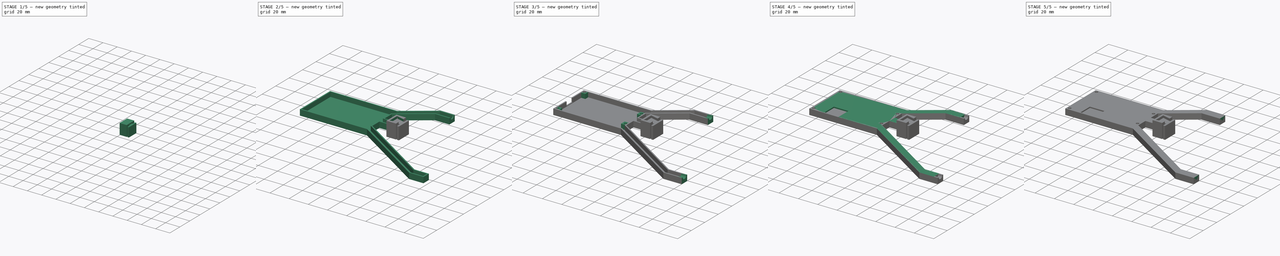
[diagram: build sequence overview — one tinted view per stage of 5, left to right]
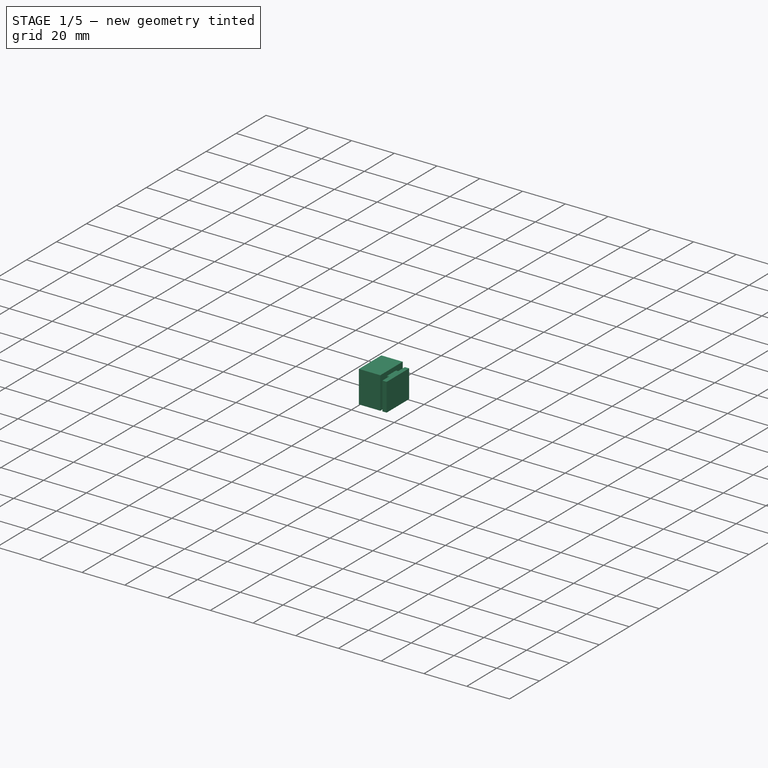
[diagram: stage 1 of 5 — iso view after this stage's code; geometry added in this stage tinted green]
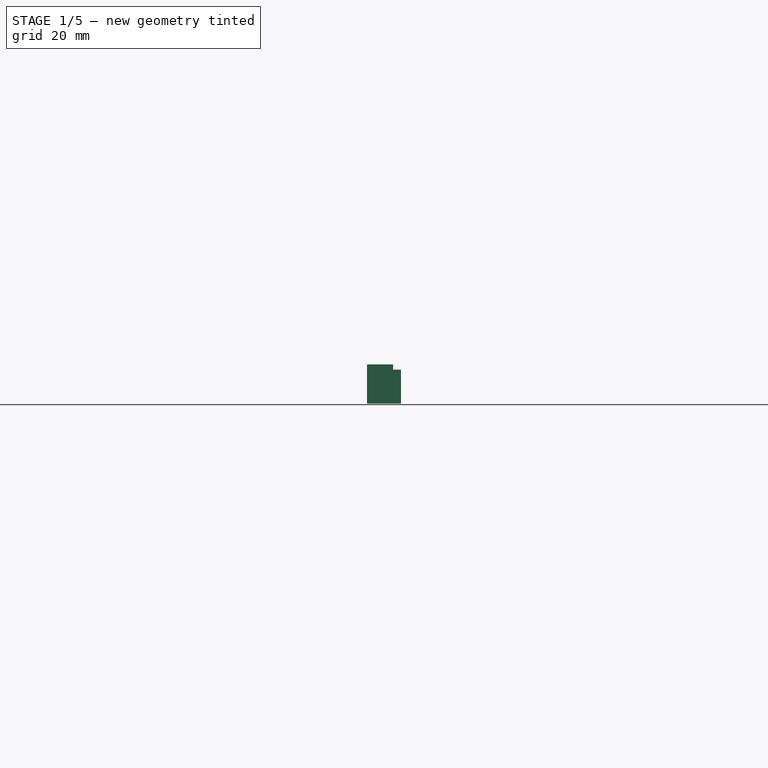
[diagram: stage 1 of 5 — front view after this stage's code; geometry added in this stage tinted green]
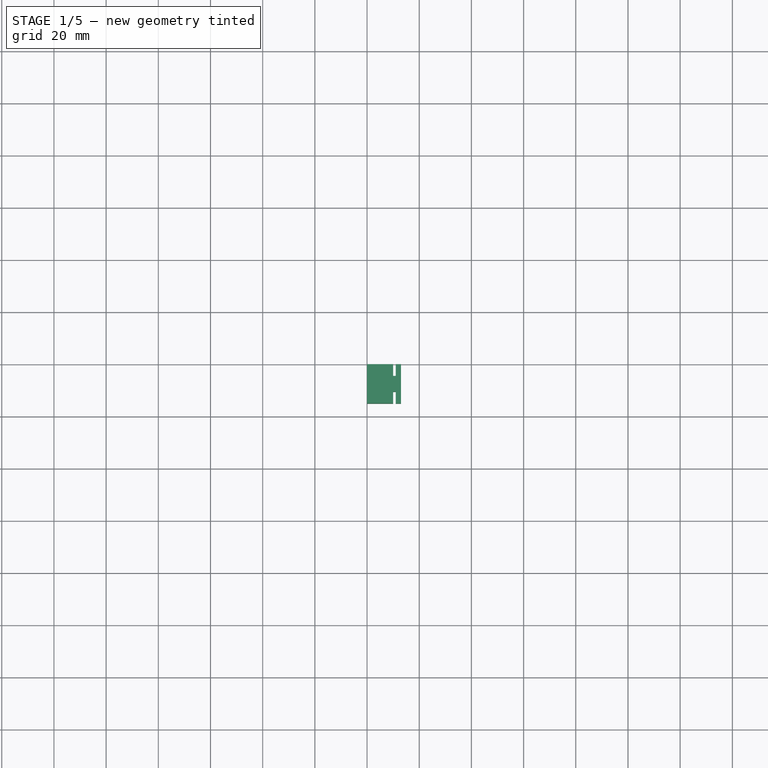
[diagram: stage 1 of 5 — top view after this stage's code; geometry added in this stage tinted green]
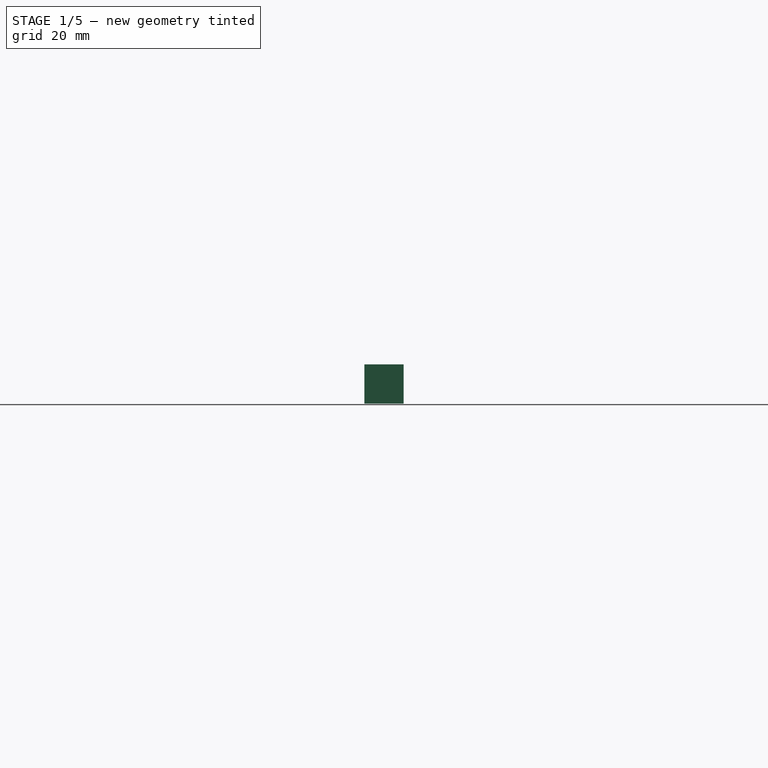
[diagram: stage 1 of 5 — right view after this stage's code; geometry added in this stage tinted green]
FCSTD DOCUMENT  (FreeCAD 0.19R24267 +99 (Git))
Label: Head Tracker
License: All rights reserved
LicenseURL: http://en.wikipedia.org/wiki/All_rights_reserved
objects: Sketcher::SketchObject×18, PartDesign::Pad×13, PartDesign::Pocket×11, PartDesign::Body×4, PartDesign::Thickness×2
note: 74 computed .brp shape members not serialized (recipe doc carries the construction recipe); baked Part::Feature solids carry a one-line shape summary decoded from their .brp

FEATURE [PartDesign::Body] Body  label="Bottom"
  Group = -> [Sketch,Pad,Thickness,Sketch001,Pocket,Sketch002,Pocket001,Sketch003,Pocket002,Sketch009,Pad002,Pad005,Pad006,Pad007,Sketch018,Pocket008]
  Origin = -> Origin
  Tip = -> Pocket008
FEATURE [Sketcher::SketchObject] Sketch019
  FullyConstrained = true
  MapMode = 5
  Placement = pos=(0,0,0) rot=(1,0,0;1.5708rad)
  Support = -> [XZ_Plane002]
  sketch-geometry (4):
    g0: LineSegment StartX=0 StartY=0 StartZ=0 EndX=10 EndY=0 EndZ=0
    g1: LineSegment StartX=10 StartY=0 StartZ=0 EndX=10 EndY=15 EndZ=0
    g2: LineSegment StartX=10 StartY=15 StartZ=0 EndX=0 EndY=15 EndZ=0
    g3: LineSegment StartX=0 StartY=15 StartZ=0 EndX=0 EndY=0 EndZ=0
  constraints (11):
    c: Coincident(g0,g1)
    c: Coincident(g1,g2)
    c: Coincident(g2,g3)
    c: Coincident(g3,g0)
    c: Horizontal(g0)
    c: Horizontal(g2)
    c: Vertical(g1)
    c: Vertical(g3)
    c: Coincident(g0,g-1)
    c: DistanceY(g1,g1) = 15
    c: DistanceX(g2,g2) = 10
FEATURE [PartDesign::Pad] Pad011
  Direction = (1,1,1)
  Length = 15
  Length2 = 100
  Placement = pos=(0,0,0) rot=(1,0,0;1.5708rad)
  Profile = -> Sketch019
  Refine = true
  Type = 0
FEATURE [PartDesign::Body] Body002  label="Mounting headphone"
  Group = -> [Sketch019,Pad011,Sketch020,Pocket009]
  Origin = -> Origin002
  Tip = -> Pocket009
FEATURE [Sketcher::SketchObject] Sketch023
  FullyConstrained = true
  MapMode = 5
  Support = -> [XY_Plane004]
  sketch-geometry (4):
    g0: LineSegment StartX=0 StartY=0 StartZ=0 EndX=10 EndY=0 EndZ=0
    g1: LineSegment StartX=10 StartY=0 StartZ=0 EndX=10 EndY=-15 EndZ=0
    g2: LineSegment StartX=10 StartY=-15 StartZ=0 EndX=0 EndY=-15 EndZ=0
    g3: LineSegment StartX=0 StartY=-15 StartZ=0 EndX=0 EndY=0 EndZ=0
  constraints (11):
    c: Coincident(g0,g1)
    c: Coincident(g1,g2)
    c: Coincident(g2,g3)
    c: Coincident(g3,g0)
    c: Horizontal(g0)
    c: Horizontal(g2)
    c: Vertical(g1)
    c: Vertical(g3)
    c: Coincident(g0,g-1)
    c: DistanceY(g1,g1) = 15
    c: DistanceX(g2,g2) = 10
FEATURE [PartDesign::Pad] Pad013
  Direction = (1,1,1)
  Length = 13
  Length2 = 100
  Profile = -> Sketch023
  Refine = true
  Type = 0
FEATURE [Sketcher::SketchObject] Sketch025
  ExternalGeometry = -> [Pad013]
  FullyConstrained = true
  MapMode = 5
  Placement = pos=(0,0,13) rot=(0,0,1;0rad)
  Support = -> [Pad013]
  sketch-geometry (9):
    g0: LineSegment StartX=10 StartY=-4.5 StartZ=0 EndX=2.5 EndY=-2.5 EndZ=0
    g1: LineSegment StartX=2.5 StartY=-2.5 StartZ=0 EndX=2.5 EndY=-12.5 EndZ=0
    g2: LineSegment StartX=2.5 StartY=-12.5 StartZ=0 EndX=10 EndY=-10.5 EndZ=0
    g3: LineSegment StartX=10 StartY=-10.5 StartZ=0 EndX=10 EndY=-4.5 EndZ=0
    g4: LineSegment StartX=10 StartY=-10.5 StartZ=0 EndX=10 EndY=-15 EndZ=0
    g5: LineSegment StartX=10 StartY=-15 StartZ=0 EndX=0 EndY=-15 EndZ=0
    g6: LineSegment StartX=0 StartY=-15 StartZ=0 EndX=0 EndY=0 EndZ=0
    g7: LineSegment StartX=0 StartY=0 StartZ=0 EndX=10 EndY=0 EndZ=0
    g8: LineSegment StartX=10 StartY=0 StartZ=0 EndX=10 EndY=-4.5 EndZ=0
  constraints (22):
    c: PointOnObject(g0,g-3)
    c: Coincident(g0,g1)
    c: Vertical(g1)
    c: Coincident(g1,g2)
    c: PointOnObject(g2,g-3)
    c: Coincident(g2,g3)
    c: Coincident(g3,g0)
    c: DistanceY(g0,g-3) = 4.5
    c: DistanceY(g-3,g2) = 4.5
    c: DistanceX(g-1,g0) = 2.5
    c: DistanceY(g0,g-1) = 2.5
    c: DistanceY(g-4,g1) = 2.5
    c: Coincident(g2,g4)
    c: Coincident(g4,g-3)
    c: Coincident(g4,g5)
    c: Coincident(g5,g-4)
    c: Coincident(g5,g6)
    c: Coincident(g6,g-1)
    c: Coincident(g6,g7)
    c: Coincident(g7,g-3)
    c: Coincident(g7,g8)
    c: Coincident(g8,g0)
FEATURE [PartDesign::Pocket] Pocket010
  BaseFeature = -> Pad013
  Length = 5
  Length2 = 100
  Profile = -> Sketch025
  Refine = true
  Type = 1
FEATURE [PartDesign::Pad] Pad014
  BaseFeature = -> Pocket010
  Direction = (1,1,1)
  Length = 1
  Length2 = 100
  Profile = -> Pocket010 [Face1]
  Refine = true
  Type = 0
FEATURE [Sketcher::SketchObject] Sketch026
  ExternalGeometry = -> [Pad014]
  FullyConstrained = true
  MapMode = 5
  Placement = pos=(11,0,0) rot=(0.57735,0.57735,0.57735;2.0944rad)
  Support = -> [Pad014]
  sketch-geometry (4):
    g0: LineSegment StartX=-15 StartY=13 StartZ=0 EndX=0 EndY=13 EndZ=0
    g1: LineSegment StartX=0 StartY=13 StartZ=0 EndX=0 EndY=0 EndZ=0
    g2: LineSegment StartX=0 StartY=0 StartZ=0 EndX=-15 EndY=0 EndZ=0
    g3: LineSegment StartX=-15 StartY=0 StartZ=0 EndX=-15 EndY=13 EndZ=0
  constraints (11):
    c: Coincident(g0,g1)
    c: Coincident(g1,g2)
    c: Coincident(g2,g3)
    c: Coincident(g3,g0)
    c: Horizontal(g0)
    c: Horizontal(g2)
    c: Vertical(g1)
    c: Vertical(g3)
    c: Horizontal(g0,g-4)
    c: DistanceX(g0,g0) = 15
    c: Coincident(g1,g-1)
FEATURE [PartDesign::Pad] Pad015
  BaseFeature = -> Pad014
  Direction = (1,1,1)
  Length = 2
  Length2 = 100
  Profile = -> Sketch026
  Refine = true
  Type = 0
FEATURE [PartDesign::Body] Body004  label="Mounting tracker"
  Group = -> [Sketch023,Pad013,Sketch025,Pocket010,Pad014,Sketch026,Pad015]
  Origin = -> Origin004
  Placement = pos=(0,0,16) rot=(0,0,1;0rad)
  Tip = -> Pad015
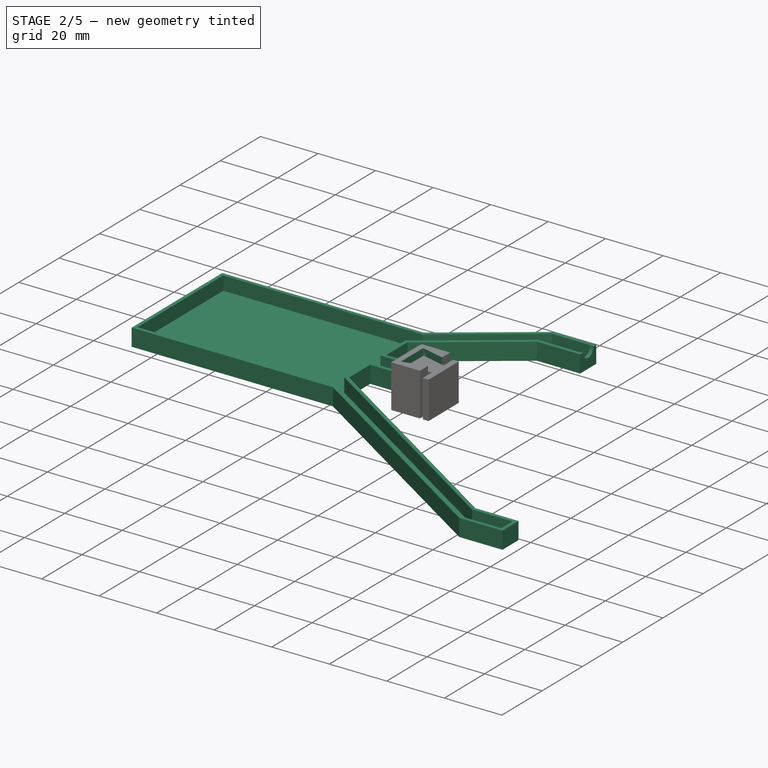
[diagram: stage 2 of 5 — iso view after this stage's code; geometry added in this stage tinted green]
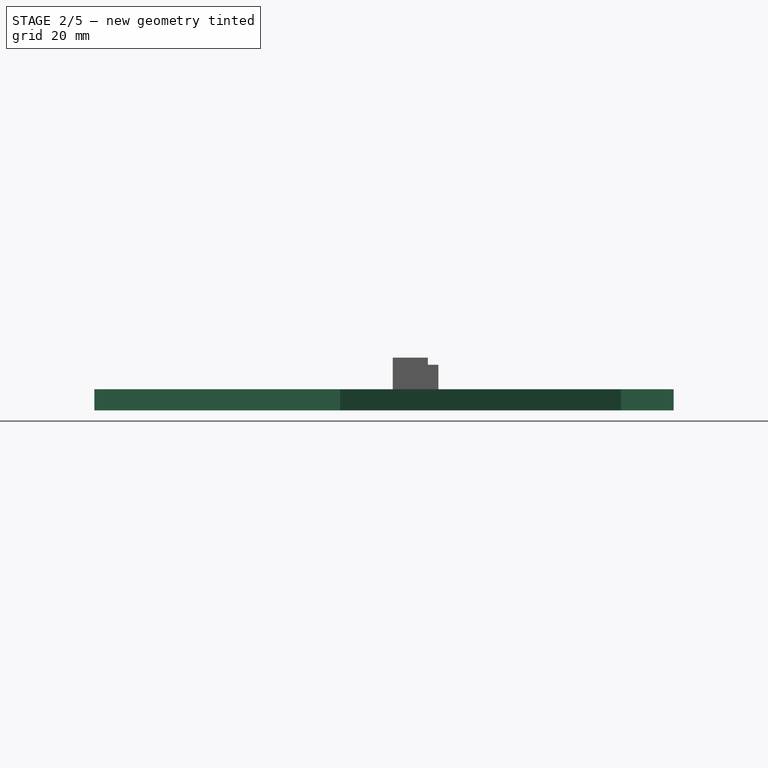
[diagram: stage 2 of 5 — front view after this stage's code; geometry added in this stage tinted green]
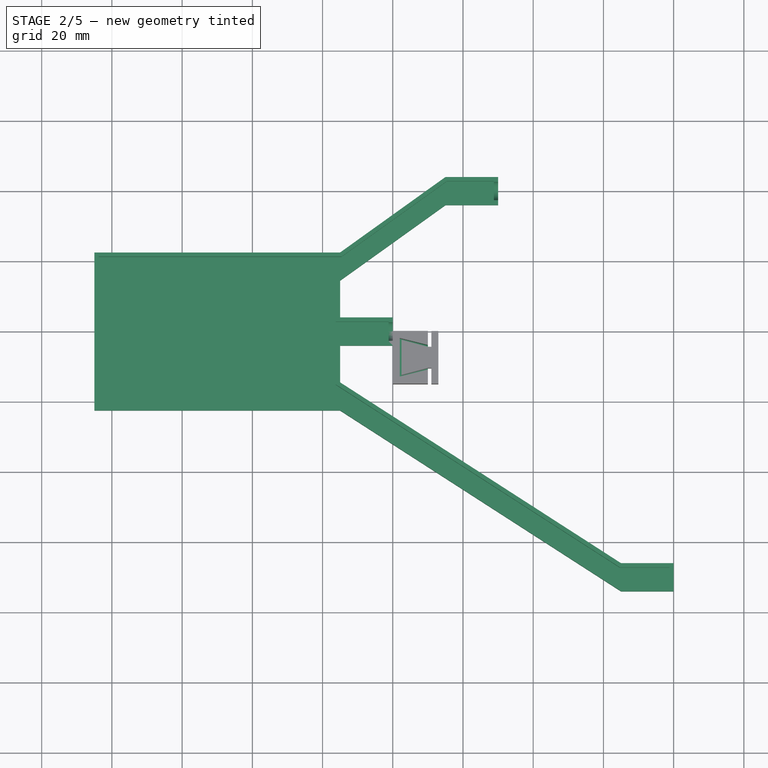
[diagram: stage 2 of 5 — top view after this stage's code; geometry added in this stage tinted green]
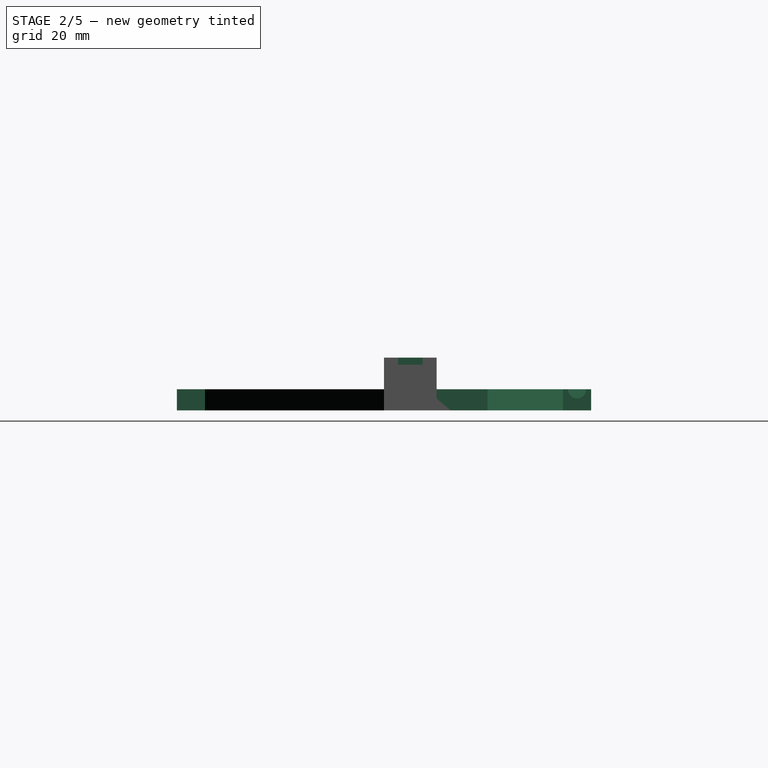
[diagram: stage 2 of 5 — right view after this stage's code; geometry added in this stage tinted green]
FEATURE [Sketcher::SketchObject] Sketch
  FullyConstrained = true
  MapMode = 5
  Support = -> [XY_Plane]
  sketch-geometry (22):
    g0: LineSegment StartX=80 StartY=-74 StartZ=0 EndX=65 EndY=-74 EndZ=0
    g1: LineSegment StartX=65 StartY=-74 StartZ=0 EndX=-15 EndY=-22.5 EndZ=0
    g2: LineSegment StartX=-15 StartY=-22.5 StartZ=0 EndX=-85 EndY=-22.5 EndZ=0
    g3: LineSegment StartX=-85 StartY=-22.5 StartZ=0 EndX=-85 EndY=22.5 EndZ=0
    g4: LineSegment StartX=-85 StartY=22.5 StartZ=0 EndX=-15 EndY=22.5 EndZ=0
    g5: LineSegment StartX=-15 StartY=22.5 StartZ=0 EndX=15 EndY=44 EndZ=0
    g6: LineSegment StartX=15 StartY=44 StartZ=0 EndX=30 EndY=44 EndZ=0
    g7: LineSegment StartX=30 StartY=44 StartZ=0 EndX=30 EndY=36 EndZ=0
    g8: LineSegment StartX=30 StartY=36 StartZ=0 EndX=15 EndY=36 EndZ=0
    g9: LineSegment StartX=15 StartY=36 StartZ=0 EndX=-15 EndY=14.5 EndZ=0
    g10: LineSegment StartX=-15 StartY=14.5 StartZ=0 EndX=-15 EndY=4 EndZ=0
    g11: LineSegment StartX=-15 StartY=4 StartZ=0 EndX=0 EndY=4 EndZ=0
    g12: LineSegment StartX=0 StartY=4 StartZ=0 EndX=0 EndY=-4 EndZ=0
    g13: LineSegment StartX=0 StartY=-4 StartZ=0 EndX=-15 EndY=-4 EndZ=0
    g14: LineSegment StartX=-15 StartY=-4 StartZ=0 EndX=-15 EndY=-14.5 EndZ=0
    g15: LineSegment StartX=-15 StartY=-14.5 StartZ=0 EndX=65 EndY=-66 EndZ=0
    g16: LineSegment StartX=65 StartY=-66 StartZ=0 EndX=80 EndY=-66 EndZ=0
    g17: LineSegment StartX=80 StartY=-66 StartZ=0 EndX=80 EndY=-74 EndZ=0
    g18: GeomPoint X=30 Y=40 Z=0
    g19: GeomPoint X=0 Y=0 Z=0
    g20: GeomPoint X=80 Y=-70 Z=0
    g21: GeomPoint X=-15 Y=-2e-16 Z=0
  constraints (56):
    c: Horizontal(g0)
    c: Coincident(g0,g1)
    c: Coincident(g1,g2)
    c: Horizontal(g2)
    c: Coincident(g2,g3)
    c: Vertical(g3)
    c: Coincident(g3,g4)
    c: Horizontal(g4)
    c: Coincident(g4,g5)
    c: Coincident(g5,g6)
    c: Horizontal(g6)
    c: Coincident(g6,g7)
    c: Vertical(g7)
    c: Coincident(g7,g8)
    c: Coincident(g8,g9)
    c: Coincident(g9,g10)
    c: Vertical(g10)
    c: Coincident(g10,g11)
    c: Horizontal(g11)
    c: Coincident(g11,g12)
    c: Vertical(g12)
    c: Coincident(g12,g13)
    c: Horizontal(g13)
    c: Coincident(g13,g14)
    c: Coincident(g14,g15)
    c: Coincident(g15,g16)
    c: Coincident(g16,g17)
    c: Coincident(g17,g0)
    c: Horizontal(g8)
    c: Horizontal(g16)
    c: Vertical(g17)
    c: DistanceY(g7,g7) = 8
    c: DistanceY(g17,g17) = 8
    c: DistanceY(g12,g12) = 8
    c: Vertical(g15,g0)
    c: Vertical(g8,g5)
    c: Symmetric(g6,g7,g18)
    c: Symmetric(g11,g12,g19)
    c: Symmetric(g16,g0,g20)
    c: DistanceY(g19,g18) = 40
    c: DistanceX(g19,g18) = 30
    c: DistanceY(g20,g19) = 70
    c: DistanceX(g19,g20) = 80
    c: Vertical(g4,g1)
    c: Symmetric(g10,g13,g21)
    c: Symmetric(g9,g14,g21)
    c: Vertical(g10,g13)
    c: Vertical(g4,g9)
    c: DistanceY(g9,g4) = 8
    c: DistanceY(g1,g14) = 8
    c: DistanceX(g6,g6) = 15
    c: Equal(g8,g13)
    c: Equal(g13,g16)
    c: Coincident(g19,g-1)
    c: DistanceX(g4,g4) = 70
    c: DistanceY(g3,g3) = 45
FEATURE [PartDesign::Pad] Pad
  Direction = (1,1,1)
  Length = 6
  Length2 = 100
  Profile = -> Sketch
  Refine = true
  Type = 0
FEATURE [PartDesign::Thickness] Thickness
  Base = -> Pad [Face20]
  BaseFeature = -> Pad
  Intersection = false
  Join = 1
  Mode = 0
  Refine = true
  Reversed = true
  SupportTransform = false
  Value = 1.2
FEATURE [Sketcher::SketchObject] Sketch001
  ExternalGeometry = -> [Thickness]
  FullyConstrained = true
  MapMode = 5
  Placement = pos=(0,0,0) rot=(0.57735,0.57735,0.57735;2.0944rad)
  Support = -> [Thickness]
  sketch-geometry (1):
    g0: Circle CenterX=-2e-16 CenterY=6 CenterZ=0 NormalX=0 NormalY=0 NormalZ=1 AngleXU=0 Radius=2.6
  constraints (2):
    c: Symmetric(g-3,g-4,g0)
    c: Diameter(g0) = 5.2
FEATURE [PartDesign::Pocket] Pocket
  BaseFeature = -> Thickness
  Length = 5
  Length2 = 100
  Profile = -> Sketch001
  Refine = true
  Type = 2
FEATURE [Sketcher::SketchObject] Sketch002
  ExternalGeometry = -> [Pocket]
  FullyConstrained = true
  MapMode = 5
  Placement = pos=(30,0,0) rot=(0.57735,0.57735,0.57735;2.0944rad)
  Support = -> [Pocket]
  sketch-geometry (1):
    g0: Circle CenterX=40 CenterY=6 CenterZ=0 NormalX=0 NormalY=0 NormalZ=1 AngleXU=0 Radius=2.6
  constraints (2):
    c: Symmetric(g-3,g-4,g0)
    c: Diameter(g0) = 5.2
FEATURE [PartDesign::Pocket] Pocket001
  BaseFeature = -> Pocket
  Length = 5
  Length2 = 100
  Profile = -> Sketch002
  Refine = true
  Type = 2
FEATURE [Sketcher::SketchObject] Sketch020
  ExternalGeometry = -> [Pad011]
  FullyConstrained = true
  MapMode = 5
  Placement = pos=(0,1e-14,15) rot=(0,0,1;3.14159rad)
  Support = -> [Pad011]
  sketch-geometry (4):
    g0: LineSegment StartX=-10 StartY=11 StartZ=0 EndX=-2 EndY=13 EndZ=0
    g1: LineSegment StartX=-10 StartY=4 StartZ=0 EndX=-2 EndY=2 EndZ=0
    g2: LineSegment StartX=-2 StartY=2 StartZ=0 EndX=-2 EndY=13 EndZ=0
    g3: LineSegment StartX=-10 StartY=11 StartZ=0 EndX=-10 EndY=4 EndZ=0
  constraints (12):
    c: PointOnObject(g0,g-3)
    c: PointOnObject(g1,g-3)
    c: Coincident(g2,g1)
    c: Coincident(g2,g0)
    c: Vertical(g2)
    c: Coincident(g3,g0)
    c: Coincident(g3,g1)
    c: DistanceY(g0,g-3) = 4
    c: DistanceY(g-3,g1) = 4
    c: DistanceX(g1,g-1) = 2
    c: DistanceY(g0,g-4) = 2
    c: DistanceY(g-1,g1) = 2
FEATURE [PartDesign::Pocket] Pocket009
  BaseFeature = -> Pad011
  Length = 13
  Length2 = 100
  Placement = pos=(0,0,0) rot=(1,0,0;1.5708rad)
  Profile = -> Sketch020
  Refine = true
  Type = 0
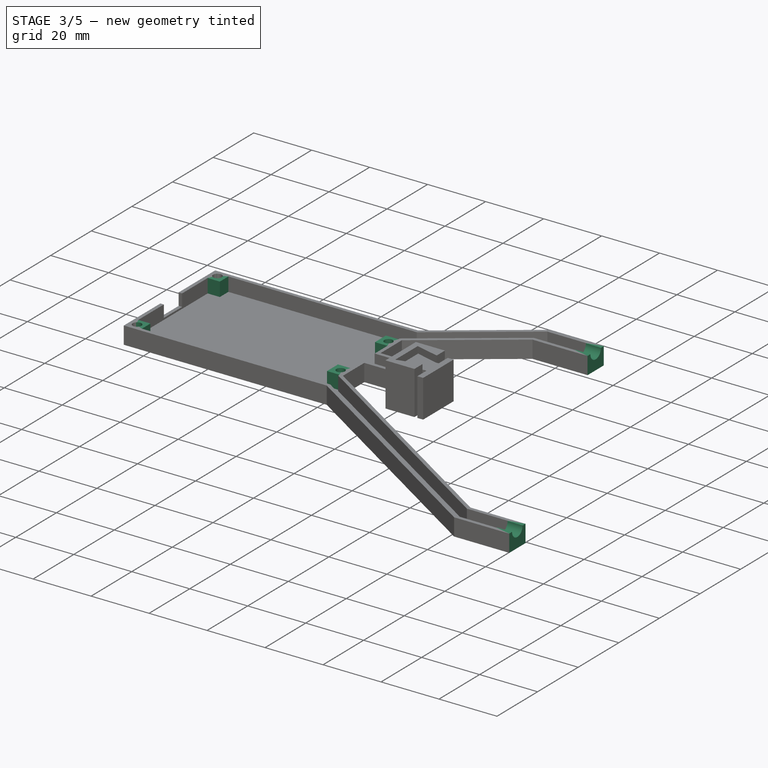
[diagram: stage 3 of 5 — iso view after this stage's code; geometry added in this stage tinted green]
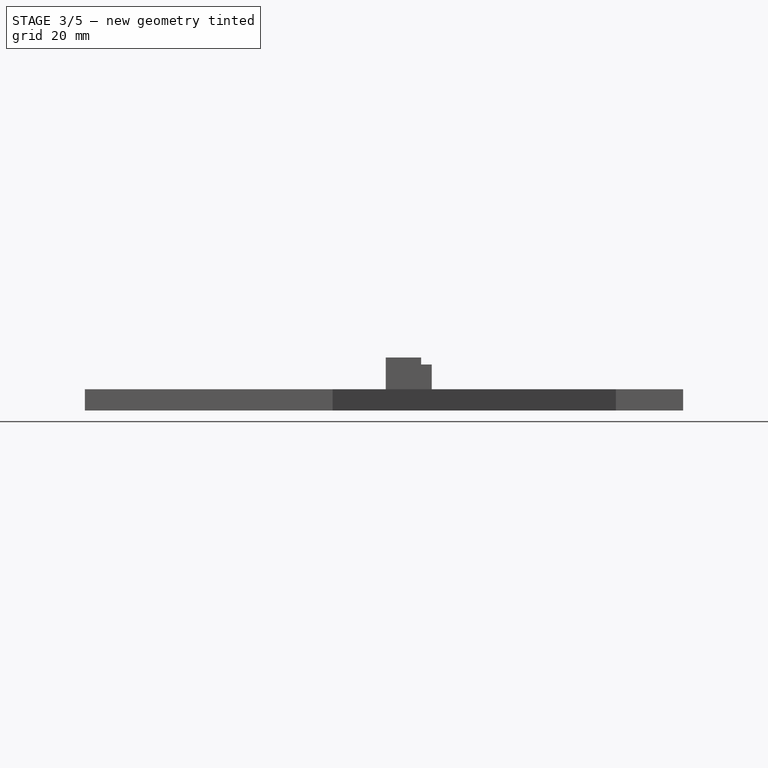
[diagram: stage 3 of 5 — front view after this stage's code; geometry added in this stage tinted green]
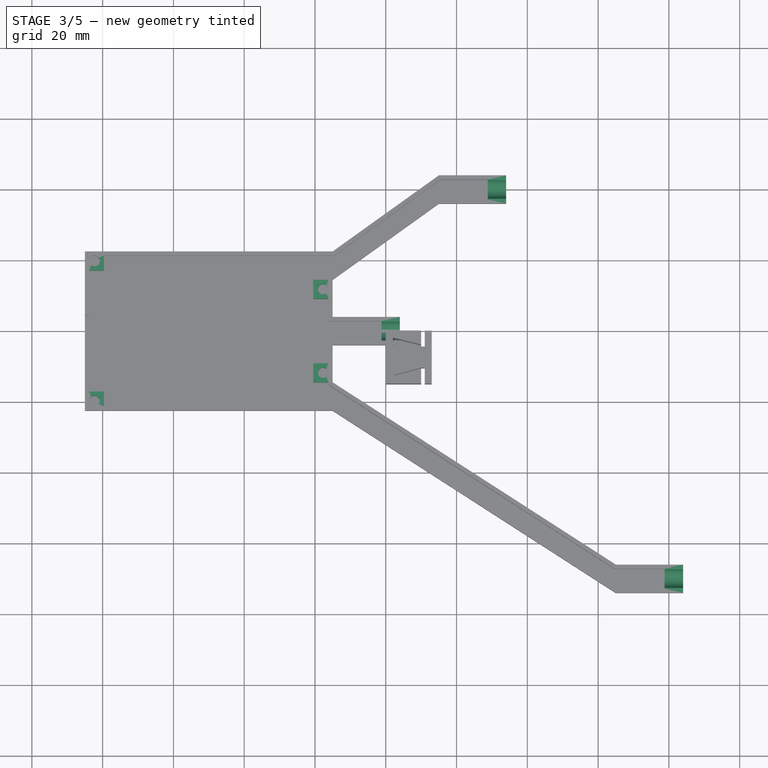
[diagram: stage 3 of 5 — top view after this stage's code; geometry added in this stage tinted green]
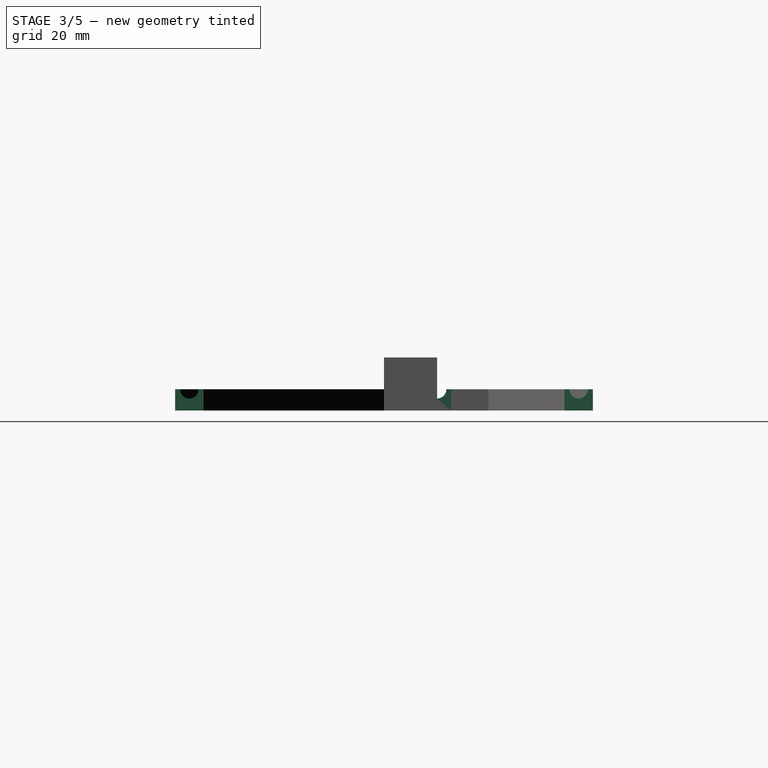
[diagram: stage 3 of 5 — right view after this stage's code; geometry added in this stage tinted green]
FEATURE [Sketcher::SketchObject] Sketch003
  ExternalGeometry = -> [Pocket001]
  FullyConstrained = true
  MapMode = 5
  Placement = pos=(80,0,0) rot=(0.57735,0.57735,0.57735;2.0944rad)
  Support = -> [Pocket001]
  sketch-geometry (1):
    g0: Circle CenterX=-70 CenterY=6 CenterZ=0 NormalX=0 NormalY=0 NormalZ=1 AngleXU=0 Radius=2.6
  constraints (2):
    c: Symmetric(g-3,g-4,g0)
    c: Diameter(g0) = 5.2
FEATURE [PartDesign::Pocket] Pocket002
  BaseFeature = -> Pocket001
  Length = 5
  Length2 = 100
  Profile = -> Sketch003
  Refine = true
  Type = 2
FEATURE [Sketcher::SketchObject] Sketch009
  ExternalGeometry = -> [Pocket002]
  FullyConstrained = true
  MapMode = 5
  Placement = pos=(0,0,1.2) rot=(0,0,1;0rad)
  Support = -> [Pocket002]
  sketch-geometry (20):
    g0: LineSegment StartX=-83.8 StartY=21.3 StartZ=0 EndX=-79.6 EndY=21.3 EndZ=0
    g1: LineSegment StartX=-79.6 StartY=21.3 StartZ=0 EndX=-79.6 EndY=17.1 EndZ=0
    g2: LineSegment StartX=-79.6 StartY=17.1 StartZ=0 EndX=-83.8 EndY=17.1 EndZ=0
    g3: LineSegment StartX=-83.8 StartY=17.1 StartZ=0 EndX=-83.8 EndY=21.3 EndZ=0
    g4: Circle CenterX=-82.3 CenterY=19.8 CenterZ=0 NormalX=0 NormalY=0 NormalZ=1 AngleXU=0 Radius=1.5
    g5: LineSegment StartX=-16.2 StartY=14.5 StartZ=0 EndX=-20.5 EndY=14.5 EndZ=0
    g6: LineSegment StartX=-20.5 StartY=14.5 StartZ=0 EndX=-20.5 EndY=9.1 EndZ=0
    g7: LineSegment StartX=-20.5 StartY=9.1 StartZ=0 EndX=-16.2 EndY=9.1 EndZ=0
    g8: LineSegment StartX=-16.2 StartY=9.1 StartZ=0 EndX=-16.2 EndY=14.5 EndZ=0
    g9: LineSegment StartX=-16.2 StartY=-14.5 StartZ=0 EndX=-20.5 EndY=-14.5 EndZ=0
    g10: LineSegment StartX=-20.5 StartY=-14.5 StartZ=0 EndX=-20.5 EndY=-9.1 EndZ=0
    g11: LineSegment StartX=-20.5 StartY=-9.1 StartZ=0 EndX=-16.2 EndY=-9.1 EndZ=0
    g12: LineSegment StartX=-16.2 StartY=-9.1 StartZ=0 EndX=-16.2 EndY=-14.5 EndZ=0
    g13: LineSegment StartX=-83.8 StartY=-21.3 StartZ=0 EndX=-79.6 EndY=-21.3 EndZ=0
    g14: LineSegment StartX=-79.6 StartY=-21.3 StartZ=0 EndX=-79.6 EndY=-17.1 EndZ=0
    g15: LineSegment StartX=-79.6 StartY=-17.1 StartZ=0 EndX=-83.8 EndY=-17.1 EndZ=0
    g16: LineSegment StartX=-83.8 StartY=-17.1 StartZ=0 EndX=-83.8 EndY=-21.3 EndZ=0
    g17: Circle CenterX=-82.3 CenterY=-19.8 CenterZ=0 NormalX=0 NormalY=0 NormalZ=1 AngleXU=0 Radius=1.5
    g18: Circle CenterX=-17.7 CenterY=11.8 CenterZ=0 NormalX=0 NormalY=0 NormalZ=1 AngleXU=0 Radius=1.45
    g19: Circle CenterX=-17.7 CenterY=-11.8 CenterZ=0 NormalX=0 NormalY=0 NormalZ=1 AngleXU=0 Radius=1.45
  constraints (58):
    c: Coincident(g0,g1)
    c: Coincident(g1,g2)
    c: Coincident(g2,g3)
    c: Coincident(g3,g0)
    c: Horizontal(g0)
    c: Horizontal(g2)
    c: Vertical(g1)
    c: Vertical(g3)
    c: Coincident(g0,g-3)
    c: DistanceX(g0,g0) = 4.2
    c: DistanceY(g1,g1) = 4.2
    c: DistanceX(g4,g1) = 2.7
    c: DistanceY(g1,g4) = 2.7
    c: Diameter(g4) = 3
    c: Coincident(g5,g6)
    c: Coincident(g6,g7)
    c: Coincident(g7,g8)
    c: Coincident(g8,g5)
    c: Horizontal(g5)
    c: Horizontal(g7)
    c: Vertical(g6)
    c: Vertical(g8)
    c: Coincident(g9,g10)
    c: Coincident(g10,g11)
    c: Coincident(g11,g12)
    c: Coincident(g12,g9)
    c: Horizontal(g9)
    c: Horizontal(g11)
    c: Vertical(g10)
    c: Vertical(g12)
    c: Coincident(g13,g14)
    c: Coincident(g14,g15)
    c: Coincident(g15,g16)
    c: Coincident(g16,g13)
    c: Horizontal(g13)
    c: Horizontal(g15)
    c: Vertical(g14)
    c: Vertical(g16)
    c: Coincident(g13,g-3)
    c: DistanceX(g15,g15) = 4.2
    c: DistanceY(g14,g14) = 4.2
    c: Diameter(g18) = 2.9
    c: Diameter(g19) = 2.9
    c: Diameter(g17) = 3
    c: DistanceX(g17,g14) = 2.7
    c: DistanceY(g17,g14) = 2.7
    c: DistanceY(g-4,g19) = 2.7
    c: DistanceX(g19,g-4) = 2.7
    c: Horizontal(g9,g-4)
    c: DistanceY(g10,g10) = 5.4
    c: DistanceX(g11,g11) = 4.3
    c: DistanceX(g9,g-4) = 1.2
    c: Horizontal(g5,g-5)
    c: DistanceY(g6,g6) = 5.4
    c: DistanceX(g5,g5) = 4.3
    c: DistanceX(g5,g-5) = 1.2
    c: DistanceX(g18,g-5) = 2.7
    c: DistanceY(g18,g-5) = 2.7
FEATURE [PartDesign::Pad] Pad002
  BaseFeature = -> Pocket002
  Direction = (1,1,1)
  Length = 10
  Length2 = 100
  Profile = -> Sketch009
  Refine = true
  Type = 3
  UpToFace = -> Pocket002 [Face5]
FEATURE [PartDesign::Pad] Pad005
  BaseFeature = -> Pad002
  Direction = (1,1,1)
  Length = 4
  Length2 = 100
  Profile = -> Pad002 [Face26]
  Refine = true
  Type = 0
FEATURE [PartDesign::Pad] Pad006
  BaseFeature = -> Pad005
  Direction = (1,1,1)
  Length = 4
  Length2 = 100
  Profile = -> Pad005 [Face19]
  Refine = true
  Type = 0
FEATURE [PartDesign::Pad] Pad007
  BaseFeature = -> Pad006
  Direction = (1,1,1)
  Length = 4
  Length2 = 100
  Profile = -> Pad006 [Face7]
  Refine = true
  Type = 0
FEATURE [PartDesign::Body] Body001  label="Top"
  Group = -> [Sketch004,Pad001,Sketch010,Thickness001,Sketch011,Pocket003,Sketch012,Pocket004,Sketch013,Pocket005,Sketch014,Pocket006,Sketch015,Pocket007,Pad008,Pad009,Pad010]
  Origin = -> Origin001
  Placement = pos=(0,-1.8e-14,11) rot=(0,0,1;0rad)
  Tip = -> Pad010
FEATURE [Sketcher::SketchObject] Sketch018
  ExternalGeometry = -> [Pad007]
  FullyConstrained = true
  MapMode = 5
  Placement = pos=(-85,0,0) rot=(0.57735,-0.57735,-0.57735;2.0944rad)
  Support = -> [Pad007]
  sketch-geometry (5):
    g0: LineSegment StartX=-4.5 StartY=6 StartZ=0 EndX=4.5 EndY=6 EndZ=0
    g1: LineSegment StartX=4.5 StartY=6 StartZ=0 EndX=4.5 EndY=1.8 EndZ=0
    g2: LineSegment StartX=4.5 StartY=1.8 StartZ=0 EndX=-4.5 EndY=1.8 EndZ=0
    g3: LineSegment StartX=-4.5 StartY=1.8 StartZ=0 EndX=-4.5 EndY=6 EndZ=0
    g4: GeomPoint X=-2e-15 Y=6 Z=0
  constraints (12):
    c: Coincident(g0,g1)
    c: Coincident(g1,g2)
    c: Coincident(g2,g3)
    c: Coincident(g3,g0)
    c: Horizontal(g0)
    c: Horizontal(g2)
    c: Vertical(g1)
    c: Vertical(g3)
    c: Symmetric(g0,g0,g4)
    c: Symmetric(g-3,g-3,g4)
    c: DistanceY(g3,g3) = 4.2
    c: DistanceX(g2,g2) = 9
FEATURE [PartDesign::Pocket] Pocket008
  BaseFeature = -> Pad007
  Length = 5
  Length2 = 100
  Profile = -> Sketch018
  Refine = true
  Type = 2
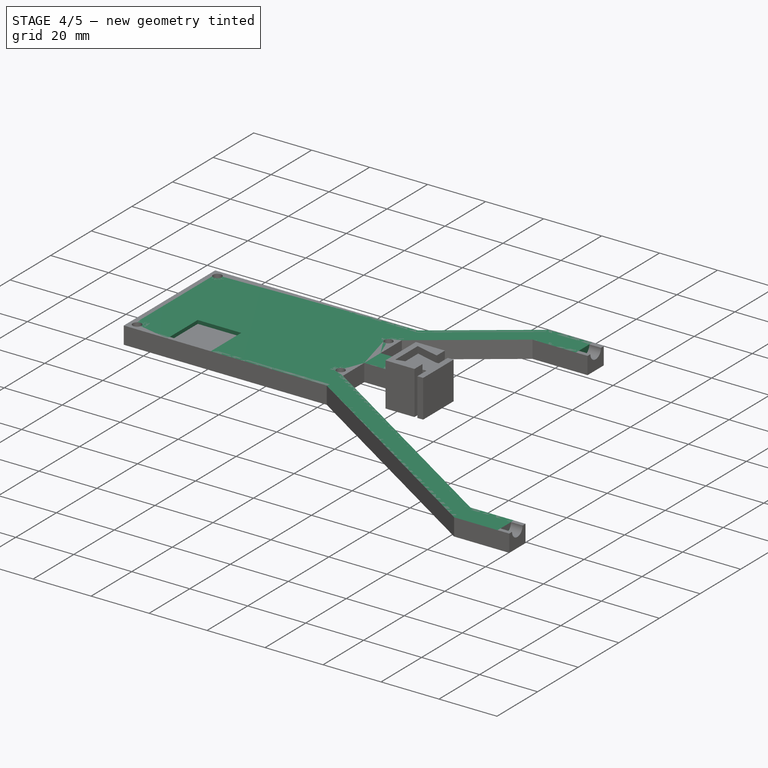
[diagram: stage 4 of 5 — iso view after this stage's code; geometry added in this stage tinted green]
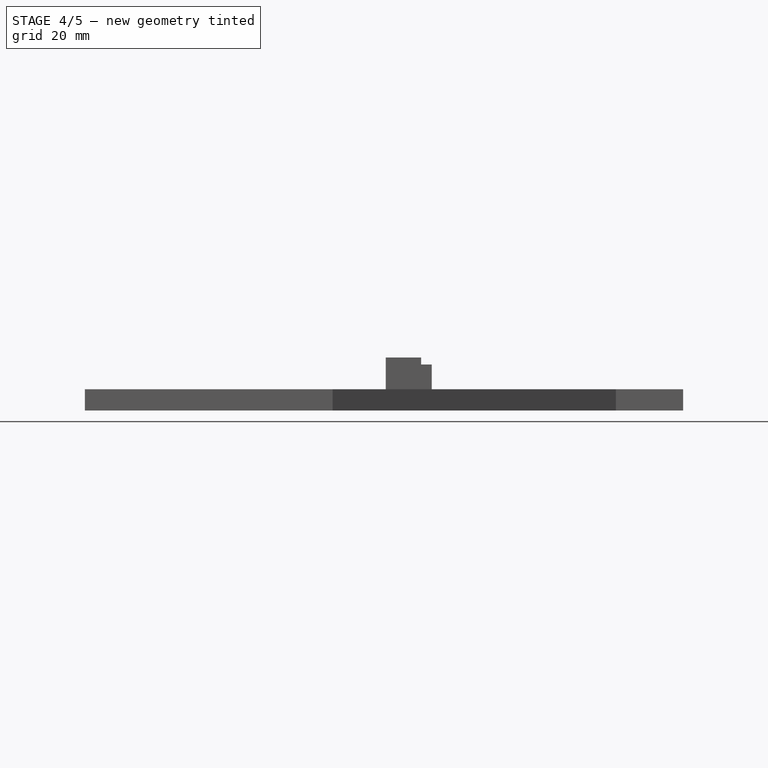
[diagram: stage 4 of 5 — front view after this stage's code; geometry added in this stage tinted green]
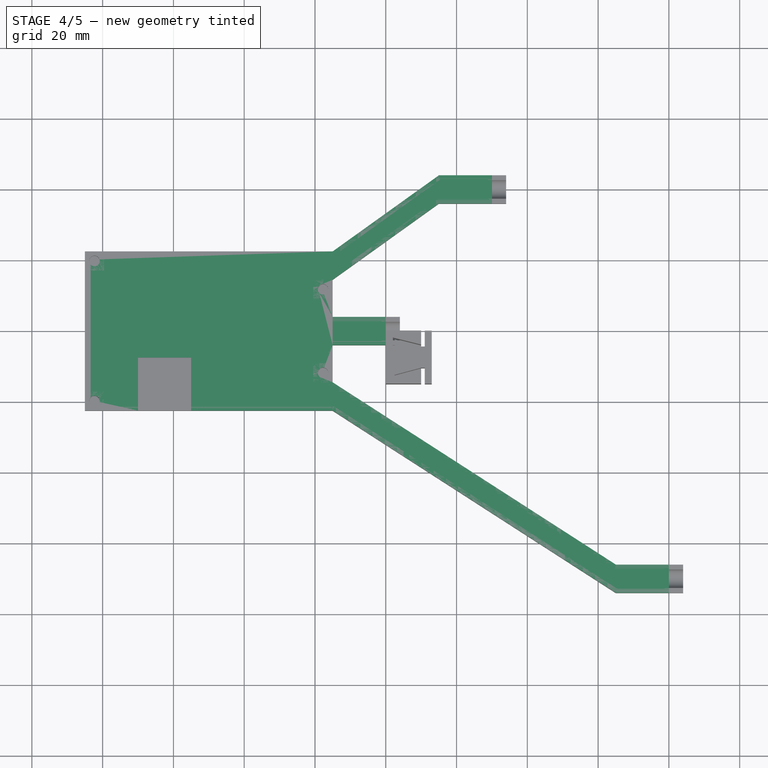
[diagram: stage 4 of 5 — top view after this stage's code; geometry added in this stage tinted green]
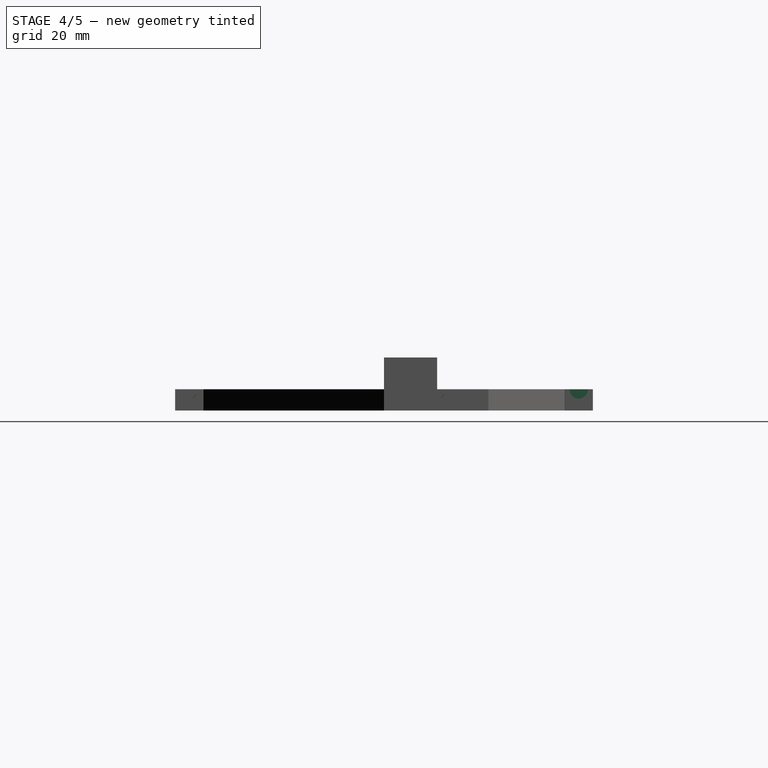
[diagram: stage 4 of 5 — right view after this stage's code; geometry added in this stage tinted green]
FEATURE [Sketcher::SketchObject] Sketch004
  FullyConstrained = true
  MapMode = 5
  Support = -> [XY_Plane001]
  sketch-geometry (22):
    g0: LineSegment StartX=80 StartY=-74 StartZ=0 EndX=65 EndY=-74 EndZ=0
    g1: LineSegment StartX=65 StartY=-74 StartZ=0 EndX=-15 EndY=-22.5 EndZ=0
    g2: LineSegment StartX=-15 StartY=-22.5 StartZ=0 EndX=-85 EndY=-22.5 EndZ=0
    g3: LineSegment StartX=-85 StartY=-22.5 StartZ=0 EndX=-85 EndY=22.5 EndZ=0
    g4: LineSegment StartX=-85 StartY=22.5 StartZ=0 EndX=-15 EndY=22.5 EndZ=0
    g5: LineSegment StartX=-15 StartY=22.5 StartZ=0 EndX=15 EndY=44 EndZ=0
    g6: LineSegment StartX=15 StartY=44 StartZ=0 EndX=30 EndY=44 EndZ=0
    g7: LineSegment StartX=30 StartY=44 StartZ=0 EndX=30 EndY=36 EndZ=0
    g8: LineSegment StartX=30 StartY=36 StartZ=0 EndX=15 EndY=36 EndZ=0
    g9: LineSegment StartX=15 StartY=36 StartZ=0 EndX=-15 EndY=14.5 EndZ=0
    g10: LineSegment StartX=-15 StartY=14.5 StartZ=0 EndX=-15 EndY=4 EndZ=0
    g11: LineSegment StartX=-15 StartY=4 StartZ=0 EndX=0 EndY=4 EndZ=0
    g12: LineSegment StartX=0 StartY=4 StartZ=0 EndX=0 EndY=-4 EndZ=0
    g13: LineSegment StartX=0 StartY=-4 StartZ=0 EndX=-15 EndY=-4 EndZ=0
    g14: LineSegment StartX=-15 StartY=-4 StartZ=0 EndX=-15 EndY=-14.5 EndZ=0
    g15: LineSegment StartX=-15 StartY=-14.5 StartZ=0 EndX=65 EndY=-66 EndZ=0
    g16: LineSegment StartX=65 StartY=-66 StartZ=0 EndX=80 EndY=-66 EndZ=0
    g17: LineSegment StartX=80 StartY=-66 StartZ=0 EndX=80 EndY=-74 EndZ=0
    g18: GeomPoint X=30 Y=40 Z=0
    g19: GeomPoint X=0 Y=0 Z=0
    g20: GeomPoint X=80 Y=-70 Z=0
    g21: GeomPoint X=-15 Y=-2e-16 Z=0
  constraints (56):
    c: Horizontal(g0)
    c: Coincident(g0,g1)
    c: Coincident(g1,g2)
    c: Horizontal(g2)
    c: Coincident(g2,g3)
    c: Vertical(g3)
    c: Coincident(g3,g4)
    c: Horizontal(g4)
    c: Coincident(g4,g5)
    c: Coincident(g5,g6)
    c: Horizontal(g6)
    c: Coincident(g6,g7)
    c: Vertical(g7)
    c: Coincident(g7,g8)
    c: Coincident(g8,g9)
    c: Coincident(g9,g10)
    c: Vertical(g10)
    c: Coincident(g10,g11)
    c: Horizontal(g11)
    c: Coincident(g11,g12)
    c: Vertical(g12)
    c: Coincident(g12,g13)
    c: Horizontal(g13)
    c: Coincident(g13,g14)
    c: Coincident(g14,g15)
    c: Coincident(g15,g16)
    c: Coincident(g16,g17)
    c: Coincident(g17,g0)
    c: Horizontal(g8)
    c: Horizontal(g16)
    c: Vertical(g17)
    c: DistanceY(g7,g7) = 8
    c: DistanceY(g17,g17) = 8
    c: DistanceY(g12,g12) = 8
    c: Vertical(g15,g0)
    c: Vertical(g8,g5)
    c: Symmetric(g6,g7,g18)
    c: Symmetric(g11,g12,g19)
    c: Symmetric(g16,g0,g20)
    c: DistanceY(g19,g18) = 40
    c: DistanceX(g19,g18) = 30
    c: DistanceY(g20,g19) = 70
    c: DistanceX(g19,g20) = 80
    c: Vertical(g4,g1)
    c: Symmetric(g10,g13,g21)
    c: Symmetric(g9,g14,g21)
    c: Vertical(g10,g13)
    c: Vertical(g4,g9)
    c: DistanceY(g9,g4) = 8
    c: DistanceY(g1,g14) = 8
    c: DistanceX(g6,g6) = 15
    c: Equal(g8,g13)
    c: Equal(g13,g16)
    c: Coincident(g19,g-1)
    c: DistanceX(g4,g4) = 70
    c: DistanceY(g3,g3) = 45
FEATURE [PartDesign::Pad] Pad001
  Direction = (1,1,1)
  Length = 6
  Length2 = 100
  Profile = -> Sketch004
  Refine = true
  Type = 0
FEATURE [Sketcher::SketchObject] Sketch010
  FullyConstrained = true
  MapMode = 5
  Placement = pos=(0,0,0) rot=(1,0,0;3.14159rad)
  Support = -> [Pad001]
FEATURE [PartDesign::Thickness] Thickness001
  Base = -> Pad001 [Face19]
  BaseFeature = -> Pad001
  Intersection = false
  Join = 1
  Mode = 0
  Refine = true
  Reversed = true
  SupportTransform = false
  Value = 1.2
FEATURE [Sketcher::SketchObject] Sketch011
  ExternalGeometry = -> [Thickness001]
  FullyConstrained = true
  MapMode = 5
  Placement = pos=(0,0,6) rot=(0,0,1;0rad)
  Support = -> [Thickness001]
  sketch-geometry (4):
    g0: Circle CenterX=-82.3 CenterY=19.8 CenterZ=0 NormalX=0 NormalY=0 NormalZ=1 AngleXU=0 Radius=1.5
    g1: Circle CenterX=-82.3 CenterY=-19.8 CenterZ=0 NormalX=0 NormalY=0 NormalZ=1 AngleXU=0 Radius=1.5
    g2: Circle CenterX=-17.7 CenterY=11.8 CenterZ=0 NormalX=0 NormalY=0 NormalZ=1 AngleXU=0 Radius=1.5
    g3: Circle CenterX=-17.7 CenterY=-11.8 CenterZ=0 NormalX=0 NormalY=0 NormalZ=1 AngleXU=0 Radius=1.5
  constraints (12):
    c: Diameter(g0) = 3
    c: Equal(g0,g1)
    c: Equal(g1,g2)
    c: Equal(g2,g3)
    c: DistanceX(g-5,g0) = 2.7
    c: DistanceX(g-5,g1) = 2.7
    c: DistanceX(g3,g-4) = 2.7
    c: DistanceX(g2,g-3) = 2.7
    c: DistanceY(g0,g-5) = 2.7
    c: DistanceY(g-5,g1) = 2.7
    c: DistanceY(g-4,g3) = 2.7
    c: DistanceY(g2,g-3) = 2.7
FEATURE [PartDesign::Pocket] Pocket003
  BaseFeature = -> Thickness001
  Length = 5
  Length2 = 100
  Profile = -> Sketch011
  Refine = true
  Type = 2
FEATURE [Sketcher::SketchObject] Sketch012
  ExternalGeometry = -> [Pocket003]
  FullyConstrained = true
  MapMode = 5
  Placement = pos=(0,0,6) rot=(0,0,1;0rad)
  Support = -> [Pocket003]
  sketch-geometry (4):
    g0: LineSegment StartX=-70 StartY=-7.5 StartZ=0 EndX=-55 EndY=-7.5 EndZ=0
    g1: LineSegment StartX=-55 StartY=-7.5 StartZ=0 EndX=-55 EndY=-22.5 EndZ=0
    g2: LineSegment StartX=-55 StartY=-22.5 StartZ=0 EndX=-70 EndY=-22.5 EndZ=0
    g3: LineSegment StartX=-70 StartY=-22.5 StartZ=0 EndX=-70 EndY=-7.5 EndZ=0
  constraints (12):
    c: Coincident(g0,g1)
    c: Coincident(g1,g2)
    c: Coincident(g2,g3)
    c: Coincident(g3,g0)
    c: Horizontal(g0)
    c: Horizontal(g2)
    c: Vertical(g1)
    c: Vertical(g3)
    c: DistanceX(g0,g0) = 15
    c: DistanceY(g1,g1) = 15
    c: Horizontal(g-3,g2)
    c: DistanceX(g-3,g2) = 15
FEATURE [PartDesign::Pocket] Pocket004
  BaseFeature = -> Pocket003
  Length = 5
  Length2 = 100
  Profile = -> Sketch012
  Refine = true
  Type = 1
FEATURE [Sketcher::SketchObject] Sketch013
  ExternalGeometry = -> [Pocket004]
  FullyConstrained = true
  MapMode = 5
  Placement = pos=(30,0,0) rot=(0.57735,0.57735,0.57735;2.0944rad)
  Support = -> [Pocket004]
  sketch-geometry (1):
    g0: Circle CenterX=40 CenterY=0 CenterZ=0 NormalX=0 NormalY=0 NormalZ=1 AngleXU=0 Radius=2.6
  constraints (2):
    c: Symmetric(g-3,g-4,g0)
    c: Diameter(g0) = 5.2
FEATURE [PartDesign::Pocket] Pocket005
  BaseFeature = -> Pocket004
  Length = 5
  Length2 = 100
  Profile = -> Sketch013
  Refine = true
  Type = 2
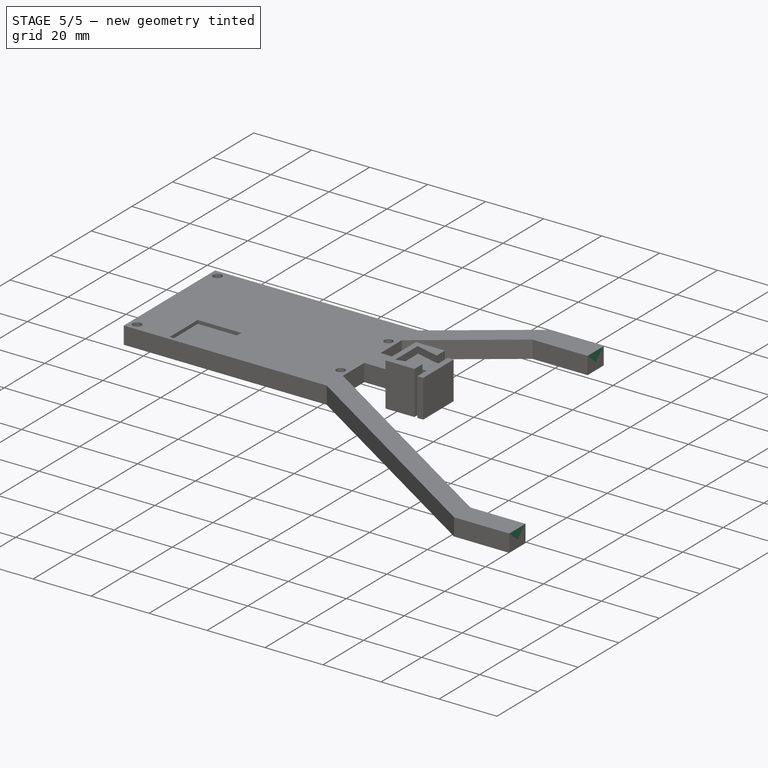
[diagram: stage 5 of 5 — iso view after this stage's code; geometry added in this stage tinted green]
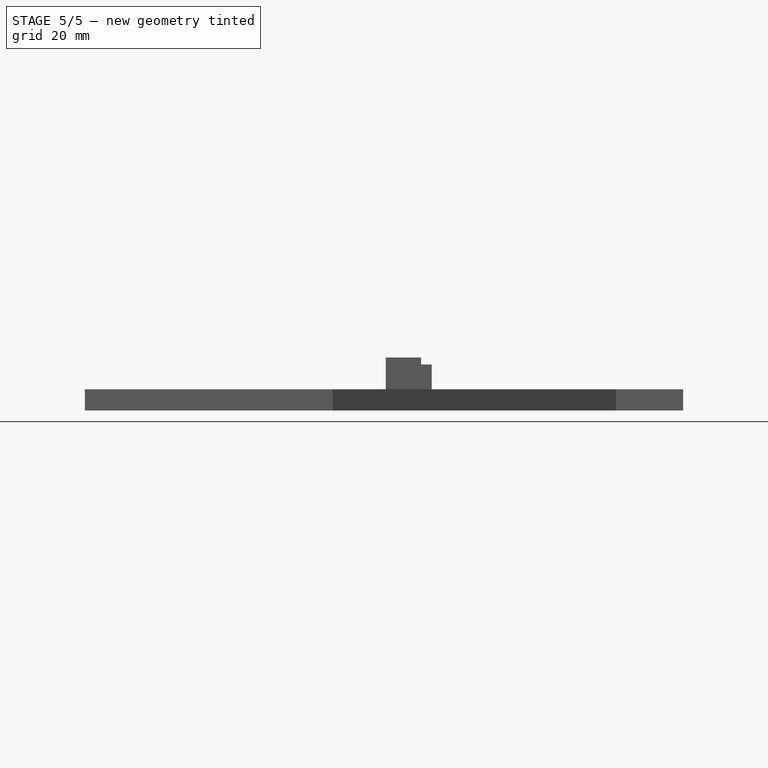
[diagram: stage 5 of 5 — front view after this stage's code; geometry added in this stage tinted green]
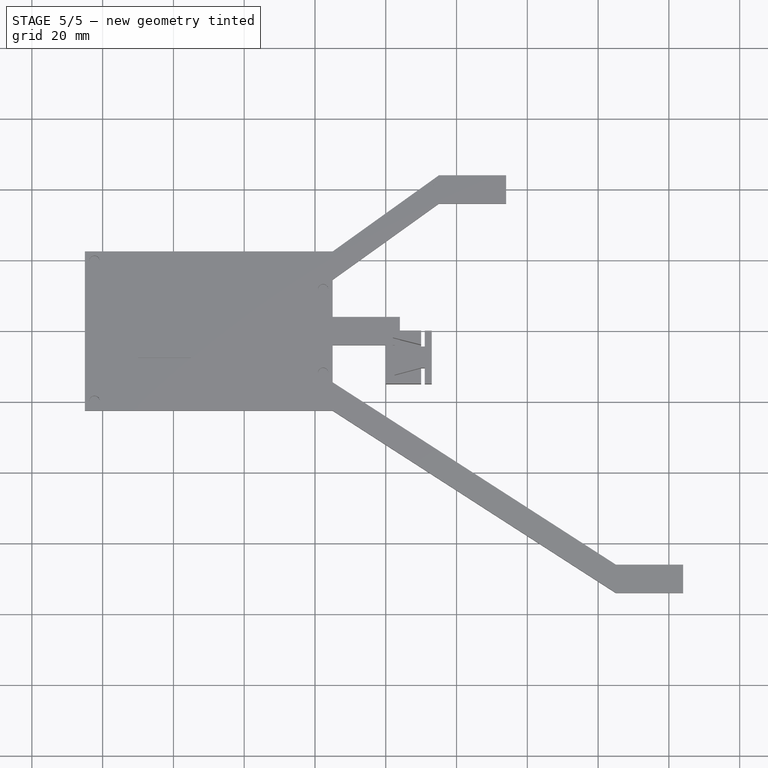
[diagram: stage 5 of 5 — top view after this stage's code; geometry added in this stage tinted green]
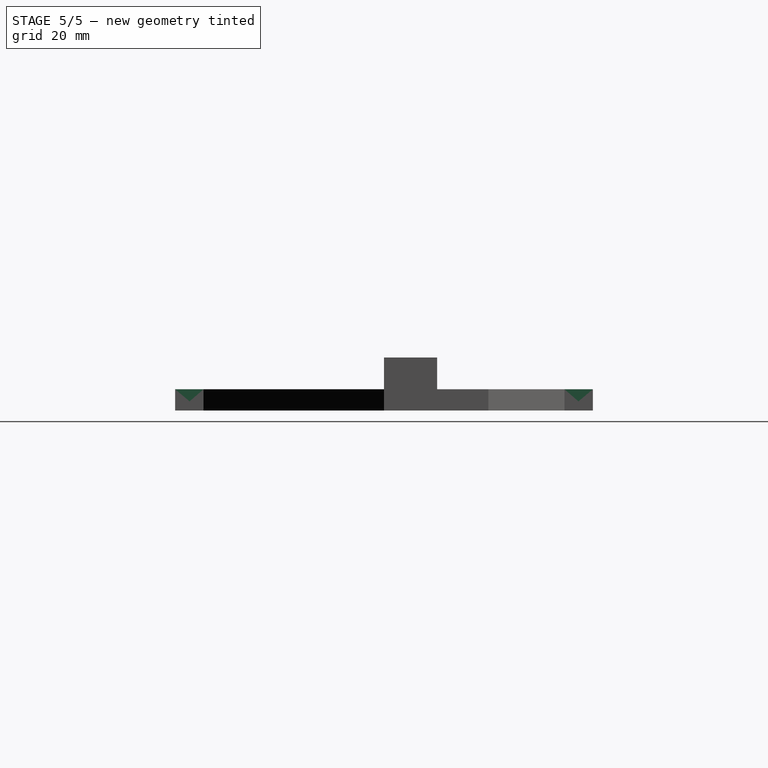
[diagram: stage 5 of 5 — right view after this stage's code; geometry added in this stage tinted green]
FEATURE [Sketcher::SketchObject] Sketch014
  ExternalGeometry = -> [Pocket005]
  FullyConstrained = true
  MapMode = 5
  Placement = pos=(0,0,0) rot=(0.57735,0.57735,0.57735;2.0944rad)
  Support = -> [Pocket005]
  sketch-geometry (1):
    g0: Circle CenterX=0 CenterY=0 CenterZ=0 NormalX=0 NormalY=0 NormalZ=1 AngleXU=0 Radius=2.6
  constraints (2):
    c: Symmetric(g-3,g-4,g0)
    c: Diameter(g0) = 5.2
FEATURE [PartDesign::Pocket] Pocket006
  BaseFeature = -> Pocket005
  Length = 5
  Length2 = 100
  Profile = -> Sketch014
  Refine = true
  Type = 2
FEATURE [Sketcher::SketchObject] Sketch015
  ExternalGeometry = -> [Pocket006]
  FullyConstrained = true
  MapMode = 5
  Placement = pos=(80,0,0) rot=(0.57735,0.57735,0.57735;2.0944rad)
  Support = -> [Pocket006]
  sketch-geometry (1):
    g0: Circle CenterX=-70 CenterY=0 CenterZ=0 NormalX=0 NormalY=0 NormalZ=1 AngleXU=0 Radius=2.6
  constraints (2):
    c: Symmetric(g-3,g-4,g0)
    c: Diameter(g0) = 5.2
FEATURE [PartDesign::Pocket] Pocket007
  BaseFeature = -> Pocket006
  Length = 5
  Length2 = 100
  Profile = -> Sketch015
  Refine = true
  Type = 2
FEATURE [PartDesign::Pad] Pad008
  BaseFeature = -> Pocket007
  Direction = (1,1,1)
  Length = 4
  Length2 = 100
  Profile = -> Pocket007 [Face2]
  Refine = true
  Type = 0
FEATURE [PartDesign::Pad] Pad009
  BaseFeature = -> Pad008
  Direction = (1,1,1)
  Length = 4
  Length2 = 100
  Profile = -> Pad008 [Face12]
  Refine = true
  Type = 0
FEATURE [PartDesign::Pad] Pad010
  BaseFeature = -> Pad009
  Direction = (1,1,1)
  Length = 4
  Length2 = 100
  Profile = -> Pad009 [Face19]
  Refine = true
  Type = 0
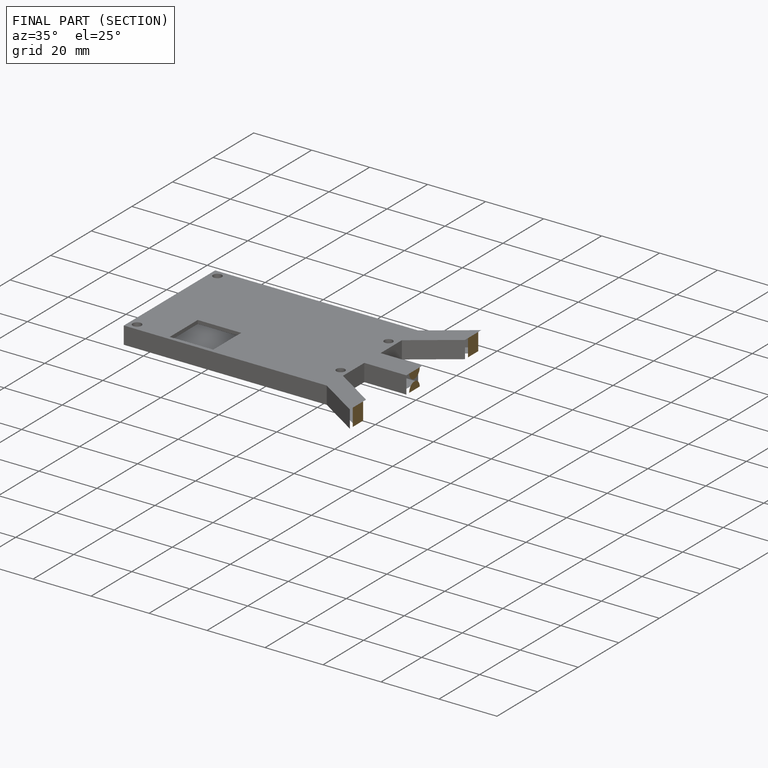
[diagram: finished part — half-section view (interior)]
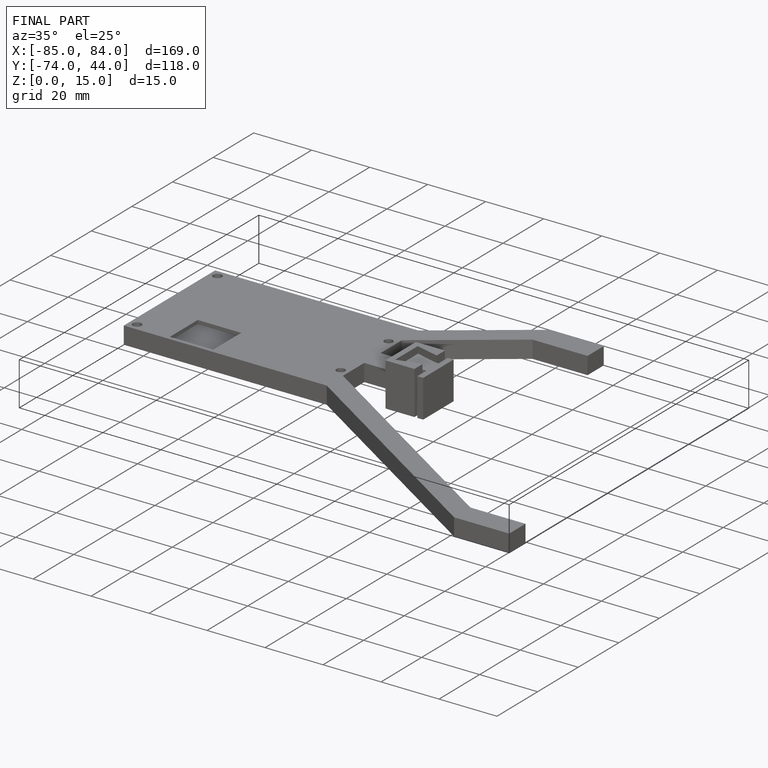
[diagram: finished part — iso view with bounding-box wireframe]
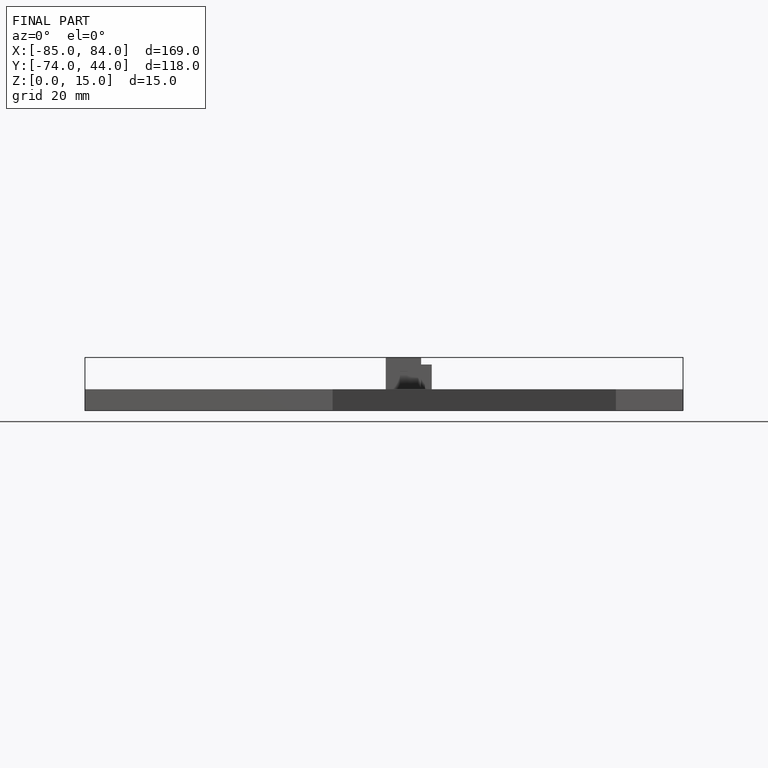
[diagram: finished part — front view with bounding-box wireframe]
